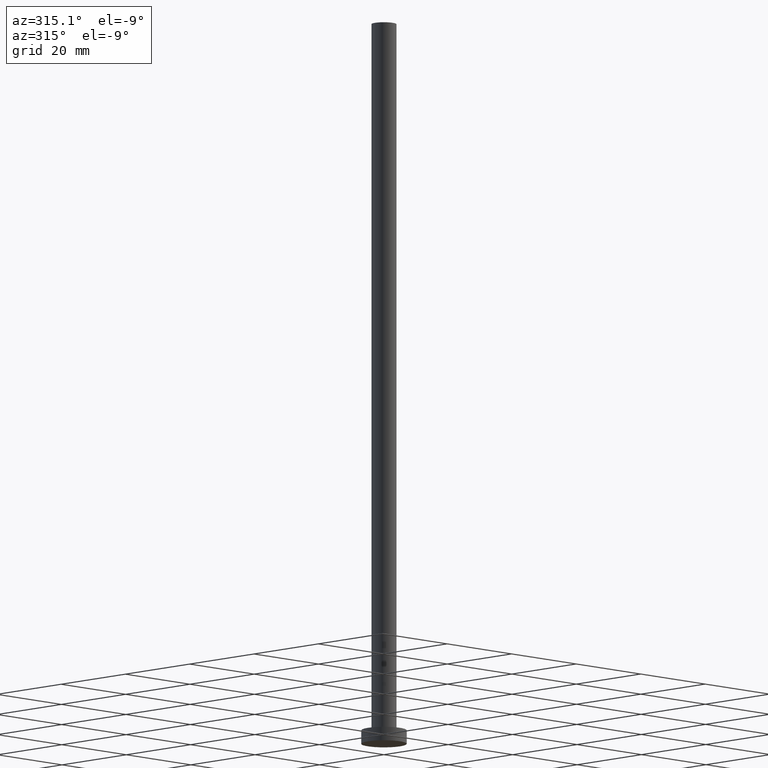
[diagram: clean part render]
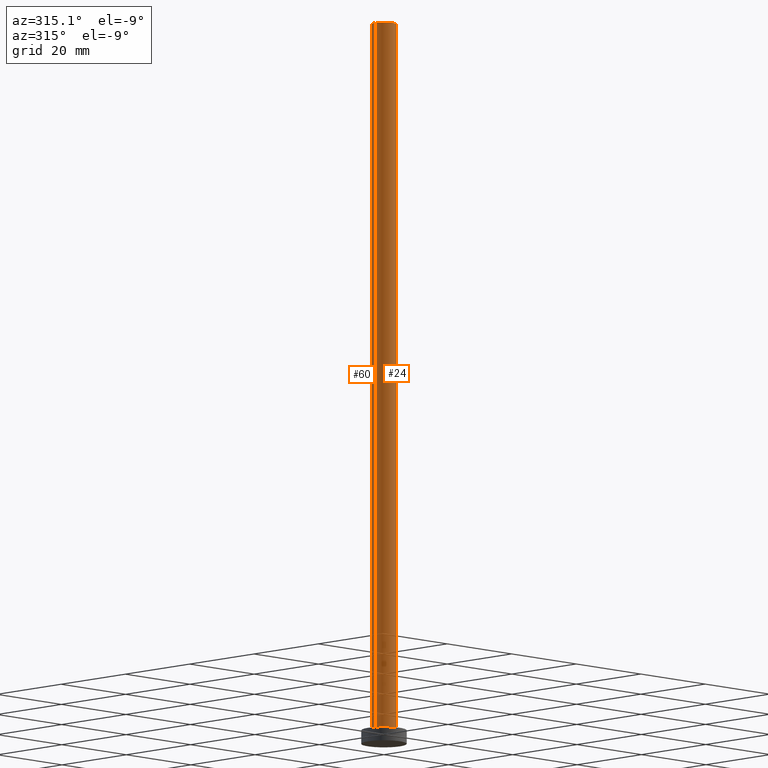
[diagram: same view with one multi-face feature highlighted, each face labeled with its STEP entity id]
A machine part, auxiliary view. The highlighted faces form ONE feature: a constant-radius fillet chain: 2 tangent blend faces with common blend radius 2.75 mm. The faces share edges in the B-rep.
Their STEP definitions:
[1] entity #60 (Cylinder):
#7 = LINE ( 'NONE', #103, #18 ) ;
#8 = FACE_OUTER_BOUND ( 'NONE', #46, .T. ) ;
#11 = ORIENTED_EDGE ( 'NONE', *, *, #239, .T. ) ;
#15 = ORIENTED_EDGE ( 'NONE', *, *, #202, .T. ) ;
#18 = VECTOR ( 'NONE', #164, 1000.000000000000000 ) ;
#31 = VERTEX_POINT ( 'NONE', #48 ) ;
#46 = EDGE_LOOP ( 'NONE', ( #71, #11, #15, #171 ) ) ;
#48 = CARTESIAN_POINT ( 'NONE',  ( -2.750000000000000000, 0.000000000000000000, 3.000000000000000000 ) ) ;
#49 = DIRECTION ( 'NONE',  ( 1.000000000000000000, 0.000000000000000000, 0.000000000000000000 ) ) ;
#54 = VERTEX_POINT ( 'NONE', #236 ) ;
#60 = ADVANCED_FACE ( 'NONE', ( #8 ), #187, .T. ) ;
#64 = DIRECTION ( 'NONE',  ( 0.000000000000000000, 0.000000000000000000, 1.000000000000000000 ) ) ;
#71 = ORIENTED_EDGE ( 'NONE', *, *, #82, .F. ) ;
#77 = CARTESIAN_POINT ( 'NONE',  ( 0.000000000000000000, 0.000000000000000000, 3.000000000000000000 ) ) ;
#82 = EDGE_CURVE ( 'NONE', #54, #206, #112, .T. ) ;
#97 = VECTOR ( 'NONE', #127, 1000.000000000000000 ) ;
#103 = CARTESIAN_POINT ( 'NONE',  ( 2.750000000000000000, 3.367778697655221012E-16, 160.0000000000000000 ) ) ;
#112 = CIRCLE ( 'NONE', #216, 2.750000000000000000 ) ;
#127 = DIRECTION ( 'NONE',  ( -0.000000000000000000, -0.000000000000000000, -1.000000000000000000 ) ) ;
#128 = DIRECTION ( 'NONE',  ( -0.000000000000000000, -0.000000000000000000, -1.000000000000000000 ) ) ;
#138 = CIRCLE ( 'NONE', #140, 2.750000000000000000 ) ;
#140 = AXIS2_PLACEMENT_3D ( 'NONE', #77, #163, #243 ) ;
#141 = LINE ( 'NONE', #221, #97 ) ;
#144 = CARTESIAN_POINT ( 'NONE',  ( -2.750000000000000000, 0.000000000000000000, 160.0000000000000000 ) ) ;
#163 = DIRECTION ( 'NONE',  ( 0.000000000000000000, 0.000000000000000000, 1.000000000000000000 ) ) ;
#164 = DIRECTION ( 'NONE',  ( -0.000000000000000000, -0.000000000000000000, -1.000000000000000000 ) ) ;
#171 = ORIENTED_EDGE ( 'NONE', *, *, #181, .F. ) ;
#179 = AXIS2_PLACEMENT_3D ( 'NONE', #230, #128, #222 ) ;
#181 = EDGE_CURVE ( 'NONE', #206, #31, #141, .T. ) ;
#187 = CYLINDRICAL_SURFACE ( 'NONE', #179, 2.750000000000000000 ) ;
#202 = EDGE_CURVE ( 'NONE', #208, #31, #138, .T. ) ;
#204 = CARTESIAN_POINT ( 'NONE',  ( 0.000000000000000000, 0.000000000000000000, 160.0000000000000000 ) ) ;
#206 = VERTEX_POINT ( 'NONE', #144 ) ;
#208 = VERTEX_POINT ( 'NONE', #223 ) ;
#216 = AXIS2_PLACEMENT_3D ( 'NONE', #204, #64, #49 ) ;
#221 = CARTESIAN_POINT ( 'NONE',  ( -2.750000000000000000, 0.000000000000000000, 160.0000000000000000 ) ) ;
#222 = DIRECTION ( 'NONE',  ( -1.000000000000000000, 0.000000000000000000, 0.000000000000000000 ) ) ;
#223 = CARTESIAN_POINT ( 'NONE',  ( 2.750000000000000000, 3.367778697655221012E-16, 3.000000000000000000 ) ) ;
#230 = CARTESIAN_POINT ( 'NONE',  ( 0.000000000000000000, 0.000000000000000000, 160.0000000000000000 ) ) ;
#236 = CARTESIAN_POINT ( 'NONE',  ( 2.750000000000000000, 3.367778697655221012E-16, 160.0000000000000000 ) ) ;
#239 = EDGE_CURVE ( 'NONE', #54, #208, #7, .T. ) ;
#243 = DIRECTION ( 'NONE',  ( 1.000000000000000000, 0.000000000000000000, 0.000000000000000000 ) ) ;
[2] entity #24 (Cylinder):
#7 = LINE ( 'NONE', #103, #18 ) ;
#18 = VECTOR ( 'NONE', #164, 1000.000000000000000 ) ;
#24 = ADVANCED_FACE ( 'NONE', ( #210 ), #166, .T. ) ;
#31 = VERTEX_POINT ( 'NONE', #48 ) ;
#35 = CIRCLE ( 'NONE', #199, 2.750000000000000000 ) ;
#44 = EDGE_CURVE ( 'NONE', #31, #208, #118, .T. ) ;
#48 = CARTESIAN_POINT ( 'NONE',  ( -2.750000000000000000, 0.000000000000000000, 3.000000000000000000 ) ) ;
#52 = ORIENTED_EDGE ( 'NONE', *, *, #125, .F. ) ;
#54 = VERTEX_POINT ( 'NONE', #236 ) ;
#66 = DIRECTION ( 'NONE',  ( -1.000000000000000000, 0.000000000000000000, 0.000000000000000000 ) ) ;
#70 = ORIENTED_EDGE ( 'NONE', *, *, #44, .T. ) ;
#72 = DIRECTION ( 'NONE',  ( 1.000000000000000000, 0.000000000000000000, 0.000000000000000000 ) ) ;
#79 = DIRECTION ( 'NONE',  ( 0.000000000000000000, 0.000000000000000000, 1.000000000000000000 ) ) ;
#83 = AXIS2_PLACEMENT_3D ( 'NONE', #188, #246, #66 ) ;
#97 = VECTOR ( 'NONE', #127, 1000.000000000000000 ) ;
#103 = CARTESIAN_POINT ( 'NONE',  ( 2.750000000000000000, 3.367778697655221012E-16, 160.0000000000000000 ) ) ;
#118 = CIRCLE ( 'NONE', #233, 2.750000000000000000 ) ;
#125 = EDGE_CURVE ( 'NONE', #206, #54, #35, .T. ) ;
#126 = ORIENTED_EDGE ( 'NONE', *, *, #239, .F. ) ;
#127 = DIRECTION ( 'NONE',  ( -0.000000000000000000, -0.000000000000000000, -1.000000000000000000 ) ) ;
#133 = DIRECTION ( 'NONE',  ( 0.000000000000000000, 0.000000000000000000, 1.000000000000000000 ) ) ;
#141 = LINE ( 'NONE', #221, #97 ) ;
#144 = CARTESIAN_POINT ( 'NONE',  ( -2.750000000000000000, 0.000000000000000000, 160.0000000000000000 ) ) ;
#164 = DIRECTION ( 'NONE',  ( -0.000000000000000000, -0.000000000000000000, -1.000000000000000000 ) ) ;
#166 = CYLINDRICAL_SURFACE ( 'NONE', #83, 2.750000000000000000 ) ;
#168 = CARTESIAN_POINT ( 'NONE',  ( 0.000000000000000000, 0.000000000000000000, 160.0000000000000000 ) ) ;
#181 = EDGE_CURVE ( 'NONE', #206, #31, #141, .T. ) ;
#186 = ORIENTED_EDGE ( 'NONE', *, *, #181, .T. ) ;
#188 = CARTESIAN_POINT ( 'NONE',  ( 0.000000000000000000, 0.000000000000000000, 160.0000000000000000 ) ) ;
#199 = AXIS2_PLACEMENT_3D ( 'NONE', #168, #79, #245 ) ;
#206 = VERTEX_POINT ( 'NONE', #144 ) ;
#208 = VERTEX_POINT ( 'NONE', #223 ) ;
#210 = FACE_OUTER_BOUND ( 'NONE', #248, .T. ) ;
#214 = CARTESIAN_POINT ( 'NONE',  ( 0.000000000000000000, 0.000000000000000000, 3.000000000000000000 ) ) ;
#221 = CARTESIAN_POINT ( 'NONE',  ( -2.750000000000000000, 0.000000000000000000, 160.0000000000000000 ) ) ;
#223 = CARTESIAN_POINT ( 'NONE',  ( 2.750000000000000000, 3.367778697655221012E-16, 3.000000000000000000 ) ) ;
#233 = AXIS2_PLACEMENT_3D ( 'NONE', #214, #133, #72 ) ;
#236 = CARTESIAN_POINT ( 'NONE',  ( 2.750000000000000000, 3.367778697655221012E-16, 160.0000000000000000 ) ) ;
#239 = EDGE_CURVE ( 'NONE', #54, #208, #7, .T. ) ;
#245 = DIRECTION ( 'NONE',  ( 1.000000000000000000, 0.000000000000000000, 0.000000000000000000 ) ) ;
#246 = DIRECTION ( 'NONE',  ( -0.000000000000000000, -0.000000000000000000, -1.000000000000000000 ) ) ;
#248 = EDGE_LOOP ( 'NONE', ( #126, #52, #186, #70 ) ) ;